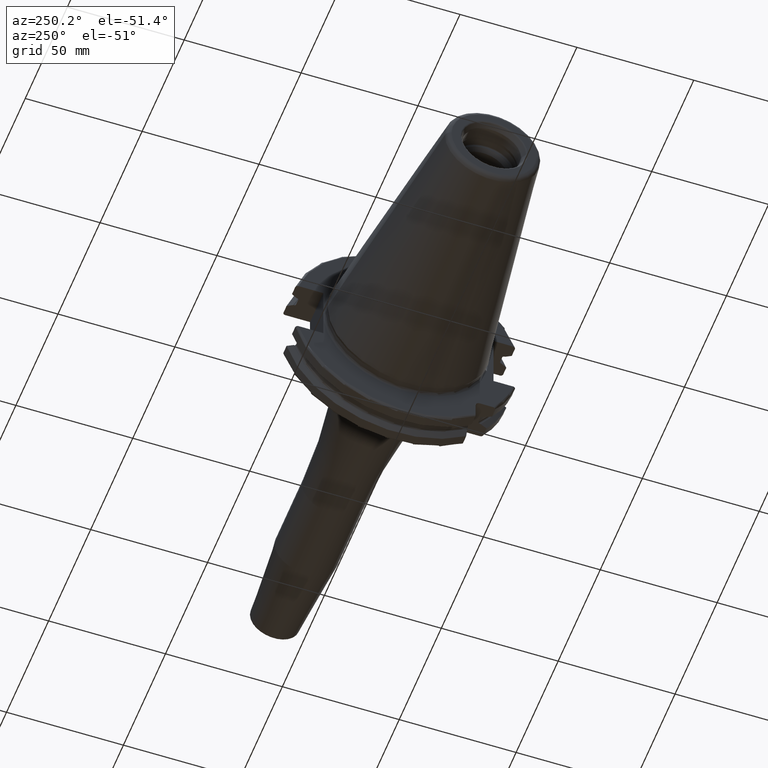
[diagram: clean part render]
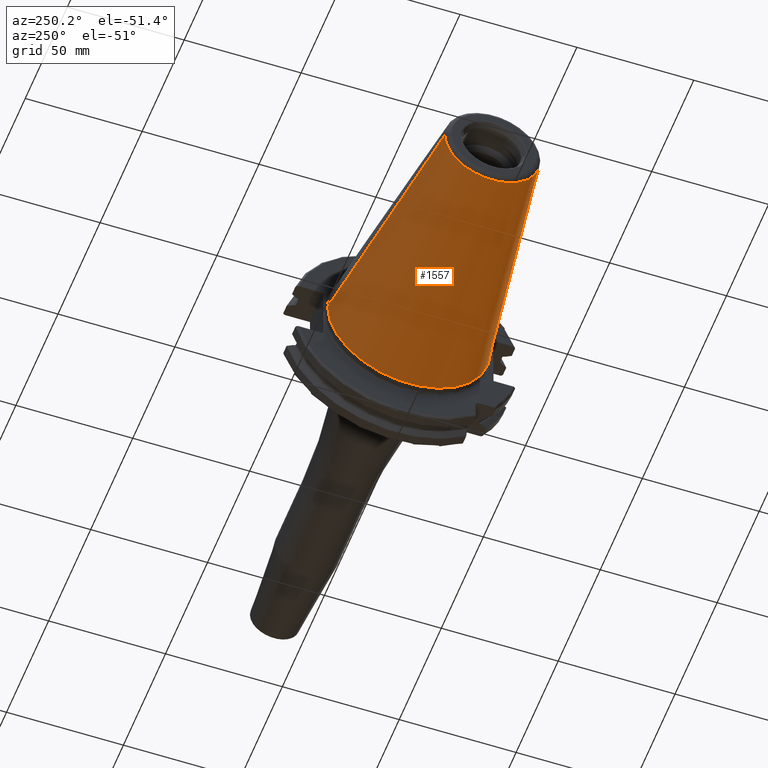
[diagram: same view with one face highlighted and labeled with its STEP entity id]
A machine part, auxiliary view. The second image highlights one B-rep face of the part: STEP entity #1557.
In plain terms, the highlighted conical surface has half-angle 8.298 deg.
Its self-contained STEP definition (entity closure, byte-faithful):
#32=CARTESIAN_POINT('',(-9.967471700563E1,0.E0,0.E0));
#33=DIRECTION('',(-1.E0,0.E0,0.E0));
#34=DIRECTION('',(0.E0,1.E0,0.E0));
#35=AXIS2_PLACEMENT_3D('',#32,#33,#34);
#47=DIRECTION('',(-9.895312636440E-1,-1.443186691705E-1,0.E0));
#48=VECTOR('',#47,1.002343617797E2);
#49=CARTESIAN_POINT('',(-4.896823332305E-1,3.485358204157E1,0.E0));
#50=LINE('',#49,#48);
#51=DIRECTION('',(-9.895312636440E-1,1.443186691705E-1,0.E0));
#52=VECTOR('',#51,1.002343617797E2);
#53=CARTESIAN_POINT('',(-4.896823332305E-1,-3.485358204157E1,0.E0));
#54=LINE('',#53,#52);
#55=CARTESIAN_POINT('',(-4.896823332305E-1,0.E0,0.E0));
#56=DIRECTION('',(-1.E0,0.E0,0.E0));
#57=DIRECTION('',(0.E0,1.E0,0.E0));
#58=AXIS2_PLACEMENT_3D('',#55,#56,#57);
#1226=CARTESIAN_POINT('',(-9.967471700563E1,2.038789234437E1,0.E0));
#1228=VERTEX_POINT('',#1226);
#1230=CARTESIAN_POINT('',(-9.967471700563E1,-2.038789234437E1,0.E0));
#1232=VERTEX_POINT('',#1230);
#1294=CARTESIAN_POINT('',(-4.896823332305E-1,3.485358204157E1,0.E0));
#1295=VERTEX_POINT('',#1294);
#1296=CARTESIAN_POINT('',(-4.896823332305E-1,-3.485358204157E1,0.E0));
#1297=VERTEX_POINT('',#1296);
#1545=CARTESIAN_POINT('',(-5.008219966943E1,0.E0,0.E0));
#1546=DIRECTION('',(1.E0,0.E0,0.E0));
#1547=DIRECTION('',(0.E0,-1.E0,0.E0));
#1548=AXIS2_PLACEMENT_3D('',#1545,#1546,#1547);
#1549=CONICAL_SURFACE('',#1548,2.762073719297E1,8.297826828206E0);
#1550=ORIENTED_EDGE('',*,*,#1535,.T.);
#1551=ORIENTED_EDGE('',*,*,#1512,.T.);
#1552=ORIENTED_EDGE('',*,*,#1539,.F.);
#1554=ORIENTED_EDGE('',*,*,#1553,.F.);
#1555=EDGE_LOOP('',(#1550,#1551,#1552,#1554));
#1556=FACE_OUTER_BOUND('',#1555,.F.);
#1557=ADVANCED_FACE('',(#1556),#1549,.T.);
#36=CIRCLE('',#35,2.038789234437E1);
#59=CIRCLE('',#58,3.485358204157E1);
#1512=EDGE_CURVE('',#1228,#1232,#36,.T.);
#1535=EDGE_CURVE('',#1295,#1228,#50,.T.);
#1539=EDGE_CURVE('',#1297,#1232,#54,.T.);
#1553=EDGE_CURVE('',#1295,#1297,#59,.T.);